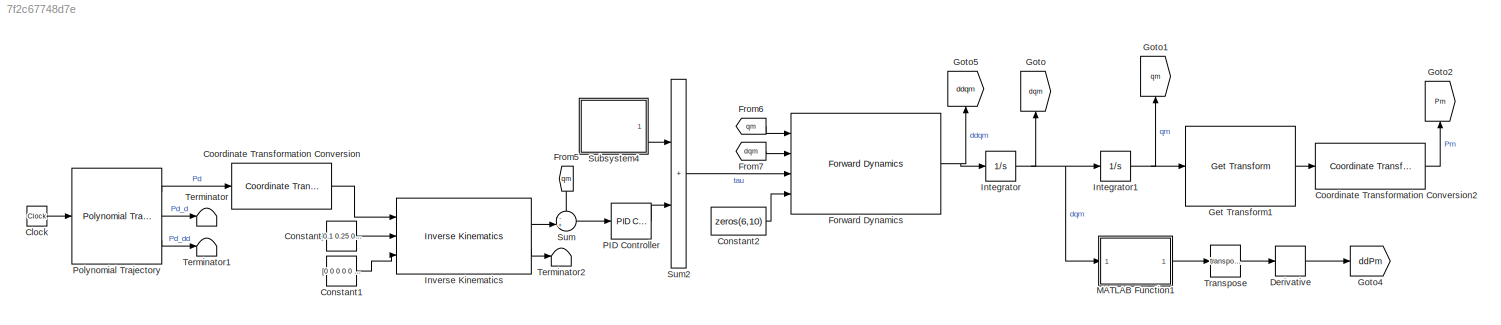
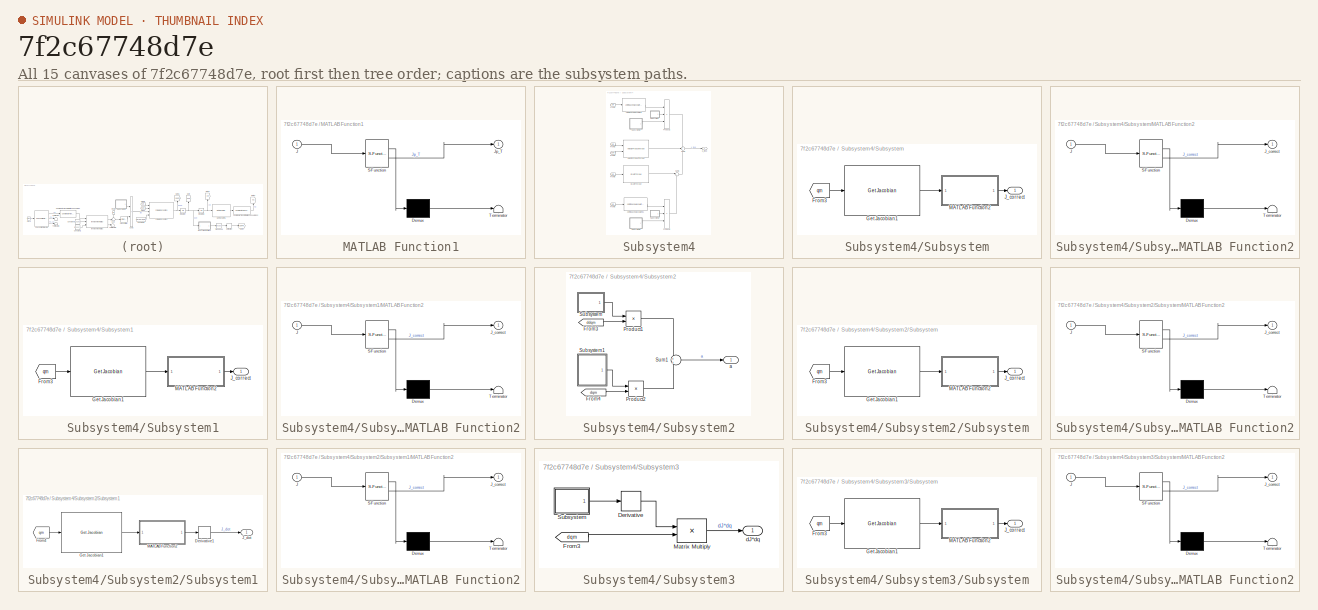
[diagram: thumbnail index - all 15 canvases of the model, root first then tree order]
MODEL slx_7f2c67748d7e
KIND model
CONFIG AbsTol = auto
CONFIG EnableMultiTasking = off
CONFIG FixedStep = auto
CONFIG MaxStep = auto
CONFIG MinStep = auto
CONFIG RelTol = 1e-3
CONFIG SampleTimeConstraint = Unconstrained
CONFIG SolverName = VariableStepAuto
CONFIG StartTime = 0.0
CONFIG StopTime = 10.0
BLOCK [Clock] Clock
BLOCK [Constant] Constant
  Value = [0.1 0.25 0.1 1 1 1]
BLOCK [Constant] Constant1
  Value = [0 0 0 0 0 0 ]
BLOCK [Constant] Constant2
  Value = zeros(6,10)
BLOCK [Reference] Coordinate Transformation Conversion  REF=robotcorelib/Coordinate Transformation Conversion
  Ports = [1, 1]
  SourceBlock = robotcorelib/Coordinate Transformation Conversion
  SourceProductBaseCode = NV,RO,RR,UV
  SourceType = robotics.slcore.internal.block.CoordinateTransformationConversion
BLOCK [Reference] Coordinate Transformation Conversion2  REF=robotcorelib/Coordinate Transformation Conversion
  Ports = [1, 1]
  SourceBlock = robotcorelib/Coordinate Transformation Conversion
  SourceProductBaseCode = NV,RO,RR,UV
  SourceType = robotics.slcore.internal.block.CoordinateTransformationConversion
BLOCK [Derivative] Derivative
BLOCK [Reference] Forward Dynamics  REF=robotmaniplib/Forward Dynamics
  Ports = [4, 1]
  SourceBlock = robotmaniplib/Forward Dynamics
  SourceProductBaseCode = RO
  SourceType = Forward Dynamics
BLOCK [From] From5
  GotoTag = qm
  NameLocation = left
  TagVisibility = global
BLOCK [From] From6
  GotoTag = qm
  TagVisibility = global
BLOCK [From] From7
  GotoTag = dqm
  TagVisibility = global
BLOCK [Reference] Get Transform1  REF=robotmaniplib/Get Transform
  Ports = [1, 1]
  SourceBlock = robotmaniplib/Get Transform
  SourceProductBaseCode = RO
  SourceType = Get Transform
BLOCK [Goto] Goto
  GotoTag = dqm
  NameLocation = right
  TagVisibility = global
BLOCK [Goto] Goto1
  GotoTag = qm
  NameLocation = right
  TagVisibility = global
BLOCK [Goto] Goto2
  GotoTag = Pm
  NameLocation = right
  TagVisibility = global
BLOCK [Goto] Goto4
  GotoTag = ddPm
  TagVisibility = global
BLOCK [Goto] Goto5
  GotoTag = ddqm
  NameLocation = right
  TagVisibility = global
BLOCK [Integrator] Integrator
  InitialCondition = 0.01
  Ports = [1, 1]
BLOCK [Integrator] Integrator1
  InitialCondition = 0.01
  Ports = [1, 1]
BLOCK [Reference] Inverse Kinematics  REF=robotmaniplib/Inverse Kinematics
  Ports = [3, 2]
  SourceBlock = robotmaniplib/Inverse Kinematics
  SourceProductBaseCode = RO
  SourceType = Inverse Kinematics
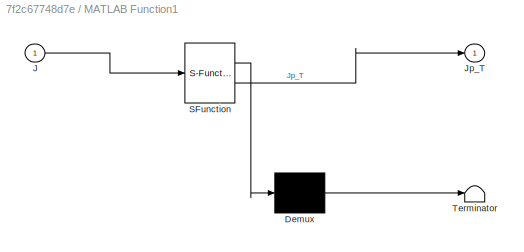
BLOCK [SubSystem] MATLAB Function1
  ErrorFcn = Stateflow.Translate.translate
  PermitHierarchicalResolution = ExplicitOnly
  Ports = [1, 1]
  RequestExecContextInheritance = off
  SFBlockType = MATLAB Function
  TreatAsAtomicUnit = on
BLOCK [Demux] MATLAB Function1/ Demux 
  Outputs = 1
  Ports = [1, 1]
BLOCK [S-Function] MATLAB Function1/ SFunction 
  EnableBusSupport = on
  FunctionName = sf_sfun
  PortCounts = [1 2]
  Ports = [1, 2]
  SFcnIsStateOwnerBlock = off
  SFunctionDeploymentMode = off
  Tag = Stateflow S-Function 1
BLOCK [Terminator] MATLAB Function1/ Terminator 
BLOCK [Inport] MATLAB Function1/J
BLOCK [Outport] MATLAB Function1/Jp_T
BLOCK [Reference] PID Controller  REF=pid_lib/PID Controller
  Ports = [1, 1]
  SourceBlock = pid_lib/PID Controller
  SourceProductBaseCode = SL
  SourceType = PID 1dof
BLOCK [Reference] Polynomial Trajectory  REF=robotcorelib/Polynomial Trajectory
  Ports = [1, 3]
  SourceBlock = robotcorelib/Polynomial Trajectory
  SourceProductBaseCode = NV,RO,RR,UV
  SourceType = robotics.slcore.internal.block.PolyTrajSys
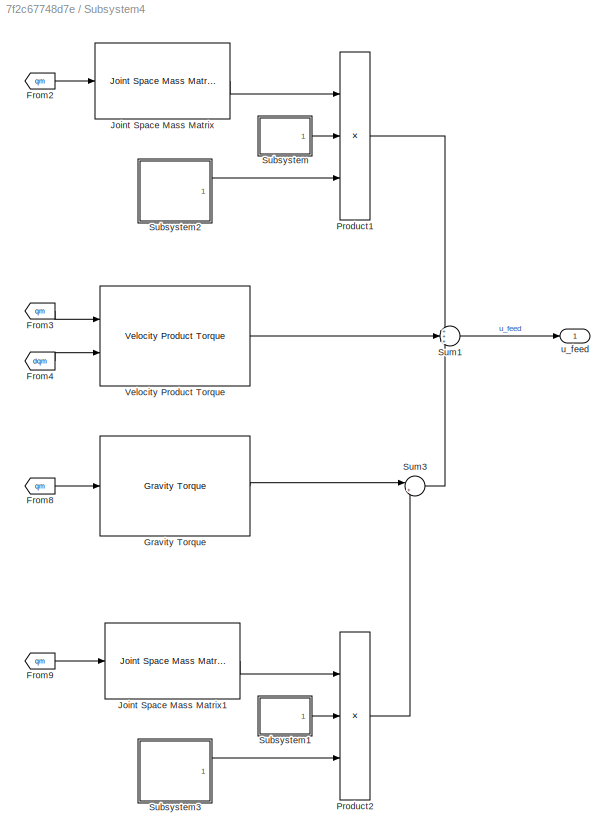
BLOCK [SubSystem] Subsystem4
  Ports = [0, 1]
  RequestExecContextInheritance = off
BLOCK [From] Subsystem4/From2
  GotoTag = qm
  TagVisibility = global
BLOCK [From] Subsystem4/From3
  GotoTag = qm
  TagVisibility = global
BLOCK [From] Subsystem4/From4
  GotoTag = dqm
  TagVisibility = global
BLOCK [From] Subsystem4/From8
  GotoTag = qm
  TagVisibility = global
BLOCK [From] Subsystem4/From9
  GotoTag = qm
  TagVisibility = global
BLOCK [Reference] Subsystem4/Gravity Torque  REF=robotmaniplib/Gravity Torque
  Ports = [1, 1]
  SourceBlock = robotmaniplib/Gravity Torque
  SourceProductBaseCode = RO
  SourceType = Gravity Torque
BLOCK [Reference] Subsystem4/Joint Space Mass Matrix  REF=robotmaniplib/Joint Space Mass Matrix
  Ports = [1, 1]
  SourceBlock = robotmaniplib/Joint Space Mass Matrix
  SourceProductBaseCode = RO
  SourceType = Joint Space Mass Matrix
BLOCK [Reference] Subsystem4/Joint Space Mass Matrix1  REF=robotmaniplib/Joint Space Mass Matrix
  Ports = [1, 1]
  SourceBlock = robotmaniplib/Joint Space Mass Matrix
  SourceProductBaseCode = RO
  SourceType = Joint Space Mass Matrix
BLOCK [Product] Subsystem4/Product1
  Inputs = */*
  Multiplication = Matrix(*)
  Ports = [3, 1]
BLOCK [Product] Subsystem4/Product2
  Inputs = */*
  Multiplication = Matrix(*)
  Ports = [3, 1]
BLOCK [SubSystem] Subsystem4/Subsystem
  Ports = [0, 1]
  RequestExecContextInheritance = off
BLOCK [From] Subsystem4/Subsystem/From3
  GotoTag = qm
  TagVisibility = global
BLOCK [Reference] Subsystem4/Subsystem/Get Jacobian1  REF=robotmaniplib/Get Jacobian
  Ports = [1, 1]
  SourceBlock = robotmaniplib/Get Jacobian
  SourceProductBaseCode = RO
  SourceType = Get Jacobian
BLOCK [Outport] Subsystem4/Subsystem/J_correct
BLOCK [SubSystem] Subsystem4/Subsystem/MATLAB Function2
  ErrorFcn = Stateflow.Translate.translate
  PermitHierarchicalResolution = ExplicitOnly
  Ports = [1, 1]
  RequestExecContextInheritance = off
  SFBlockType = MATLAB Function
  TreatAsAtomicUnit = on
BLOCK [Demux] Subsystem4/Subsystem/MATLAB Function2/ Demux 
  Outputs = 1
  Ports = [1, 1]
BLOCK [S-Function] Subsystem4/Subsystem/MATLAB Function2/ SFunction 
  EnableBusSupport = on
  FunctionName = sf_sfun
  PortCounts = [1 2]
  Ports = [1, 2]
  SFcnIsStateOwnerBlock = off
  SFunctionDeploymentMode = off
  Tag = Stateflow S-Function 5
BLOCK [Terminator] Subsystem4/Subsystem/MATLAB Function2/ Terminator 
BLOCK [Inport] Subsystem4/Subsystem/MATLAB Function2/J
BLOCK [Outport] Subsystem4/Subsystem/MATLAB Function2/J_correct
BLOCK [SubSystem] Subsystem4/Subsystem1
  Ports = [0, 1]
  RequestExecContextInheritance = off
BLOCK [From] Subsystem4/Subsystem1/From3
  GotoTag = qm
  TagVisibility = global
BLOCK [Reference] Subsystem4/Subsystem1/Get Jacobian1  REF=robotmaniplib/Get Jacobian
  Ports = [1, 1]
  SourceBlock = robotmaniplib/Get Jacobian
  SourceProductBaseCode = RO
  SourceType = Get Jacobian
BLOCK [Outport] Subsystem4/Subsystem1/J_correct
BLOCK [SubSystem] Subsystem4/Subsystem1/MATLAB Function2
  ErrorFcn = Stateflow.Translate.translate
  PermitHierarchicalResolution = ExplicitOnly
  Ports = [1, 1]
  RequestExecContextInheritance = off
  SFBlockType = MATLAB Function
  TreatAsAtomicUnit = on
BLOCK [Demux] Subsystem4/Subsystem1/MATLAB Function2/ Demux 
  Outputs = 1
  Ports = [1, 1]
BLOCK [S-Function] Subsystem4/Subsystem1/MATLAB Function2/ SFunction 
  EnableBusSupport = on
  FunctionName = sf_sfun
  PortCounts = [1 2]
  Ports = [1, 2]
  SFcnIsStateOwnerBlock = off
  SFunctionDeploymentMode = off
  Tag = Stateflow S-Function 6
BLOCK [Terminator] Subsystem4/Subsystem1/MATLAB Function2/ Terminator 
BLOCK [Inport] Subsystem4/Subsystem1/MATLAB Function2/J
BLOCK [Outport] Subsystem4/Subsystem1/MATLAB Function2/J_correct
BLOCK [SubSystem] Subsystem4/Subsystem2
  Ports = [0, 1]
  RequestExecContextInheritance = off
BLOCK [From] Subsystem4/Subsystem2/From3
  GotoTag = ddqm
  TagVisibility = global
BLOCK [From] Subsystem4/Subsystem2/From4
  GotoTag = dqm
  TagVisibility = global
BLOCK [Product] Subsystem4/Subsystem2/Product1
  Multiplication = Matrix(*)
  Ports = [2, 1]
BLOCK [Product] Subsystem4/Subsystem2/Product2
  Multiplication = Matrix(*)
  Ports = [2, 1]
BLOCK [SubSystem] Subsystem4/Subsystem2/Subsystem
  Ports = [0, 1]
  RequestExecContextInheritance = off
BLOCK [From] Subsystem4/Subsystem2/Subsystem/From3
  GotoTag = qm
  TagVisibility = global
BLOCK [Reference] Subsystem4/Subsystem2/Subsystem/Get Jacobian1  REF=robotmaniplib/Get Jacobian
  Ports = [1, 1]
  SourceBlock = robotmaniplib/Get Jacobian
  SourceProductBaseCode = RO
  SourceType = Get Jacobian
BLOCK [Outport] Subsystem4/Subsystem2/Subsystem/J_correct
BLOCK [SubSystem] Subsystem4/Subsystem2/Subsystem/MATLAB Function2
  ErrorFcn = Stateflow.Translate.translate
  PermitHierarchicalResolution = ExplicitOnly
  Ports = [1, 1]
  RequestExecContextInheritance = off
  SFBlockType = MATLAB Function
  TreatAsAtomicUnit = on
BLOCK [Demux] Subsystem4/Subsystem2/Subsystem/MATLAB Function2/ Demux 
  Outputs = 1
  Ports = [1, 1]
BLOCK [S-Function] Subsystem4/Subsystem2/Subsystem/MATLAB Function2/ SFunction 
  EnableBusSupport = on
  FunctionName = sf_sfun
  PortCounts = [1 2]
  Ports = [1, 2]
  SFcnIsStateOwnerBlock = off
  SFunctionDeploymentMode = off
  Tag = Stateflow S-Function 3
BLOCK [Terminator] Subsystem4/Subsystem2/Subsystem/MATLAB Function2/ Terminator 
BLOCK [Inport] Subsystem4/Subsystem2/Subsystem/MATLAB Function2/J
BLOCK [Outport] Subsystem4/Subsystem2/Subsystem/MATLAB Function2/J_correct
BLOCK [SubSystem] Subsystem4/Subsystem2/Subsystem1
  Ports = [0, 1]
  RequestExecContextInheritance = off
BLOCK [Derivative] Subsystem4/Subsystem2/Subsystem1/Derivative1
BLOCK [From] Subsystem4/Subsystem2/Subsystem1/From4
  GotoTag = qm
  TagVisibility = global
BLOCK [Reference] Subsystem4/Subsystem2/Subsystem1/Get Jacobian1  REF=robotmaniplib/Get Jacobian
  Ports = [1, 1]
  SourceBlock = robotmaniplib/Get Jacobian
  SourceProductBaseCode = RO
  SourceType = Get Jacobian
BLOCK [Outport] Subsystem4/Subsystem2/Subsystem1/J_dot
BLOCK [SubSystem] Subsystem4/Subsystem2/Subsystem1/MATLAB Function2
  ErrorFcn = Stateflow.Translate.translate
  PermitHierarchicalResolution = ExplicitOnly
  Ports = [1, 1]
  RequestExecContextInheritance = off
  SFBlockType = MATLAB Function
  TreatAsAtomicUnit = on
BLOCK [Demux] Subsystem4/Subsystem2/Subsystem1/MATLAB Function2/ Demux 
  Outputs = 1
  Ports = [1, 1]
BLOCK [S-Function] Subsystem4/Subsystem2/Subsystem1/MATLAB Function2/ SFunction 
  EnableBusSupport = on
  FunctionName = sf_sfun
  PortCounts = [1 2]
  Ports = [1, 2]
  SFcnIsStateOwnerBlock = off
  SFunctionDeploymentMode = off
  Tag = Stateflow S-Function 4
BLOCK [Terminator] Subsystem4/Subsystem2/Subsystem1/MATLAB Function2/ Terminator 
BLOCK [Inport] Subsystem4/Subsystem2/Subsystem1/MATLAB Function2/J
BLOCK [Outport] Subsystem4/Subsystem2/Subsystem1/MATLAB Function2/J_correct
BLOCK [Sum] Subsystem4/Subsystem2/Sum1
  Inputs = +|+
  Ports = [2, 1]
BLOCK [Outport] Subsystem4/Subsystem2/a
BLOCK [SubSystem] Subsystem4/Subsystem3
  Ports = [0, 1]
  RequestExecContextInheritance = off
BLOCK [Derivative] Subsystem4/Subsystem3/Derivative
BLOCK [From] Subsystem4/Subsystem3/From3
  GotoTag = dqm
  TagVisibility = global
BLOCK [Product] Subsystem4/Subsystem3/Matrix Multiply
  Multiplication = Matrix(*)
  Ports = [2, 1]
BLOCK [SubSystem] Subsystem4/Subsystem3/Subsystem
  Ports = [0, 1]
  RequestExecContextInheritance = off
BLOCK [From] Subsystem4/Subsystem3/Subsystem/From3
  GotoTag = qm
  TagVisibility = global
BLOCK [Reference] Subsystem4/Subsystem3/Subsystem/Get Jacobian1  REF=robotmaniplib/Get Jacobian
  Ports = [1, 1]
  SourceBlock = robotmaniplib/Get Jacobian
  SourceProductBaseCode = RO
  SourceType = Get Jacobian
BLOCK [Outport] Subsystem4/Subsystem3/Subsystem/J_correct
BLOCK [SubSystem] Subsystem4/Subsystem3/Subsystem/MATLAB Function2
  ErrorFcn = Stateflow.Translate.translate
  PermitHierarchicalResolution = ExplicitOnly
  Ports = [1, 1]
  RequestExecContextInheritance = off
  SFBlockType = MATLAB Function
  TreatAsAtomicUnit = on
BLOCK [Demux] Subsystem4/Subsystem3/Subsystem/MATLAB Function2/ Demux 
  Outputs = 1
  Ports = [1, 1]
BLOCK [S-Function] Subsystem4/Subsystem3/Subsystem/MATLAB Function2/ SFunction 
  EnableBusSupport = on
  FunctionName = sf_sfun
  PortCounts = [1 2]
  Ports = [1, 2]
  SFcnIsStateOwnerBlock = off
  SFunctionDeploymentMode = off
  Tag = Stateflow S-Function 7
BLOCK [Terminator] Subsystem4/Subsystem3/Subsystem/MATLAB Function2/ Terminator 
BLOCK [Inport] Subsystem4/Subsystem3/Subsystem/MATLAB Function2/J
BLOCK [Outport] Subsystem4/Subsystem3/Subsystem/MATLAB Function2/J_correct
BLOCK [Outport] Subsystem4/Subsystem3/dJ*dq
BLOCK [Sum] Subsystem4/Sum1
  Inputs = +++
  Ports = [3, 1]
BLOCK [Sum] Subsystem4/Sum3
  Inputs = |+-
  Ports = [2, 1]
BLOCK [Reference] Subsystem4/Velocity Product Torque  REF=robotmaniplib/Velocity Product Torque
  Ports = [2, 1]
  SourceBlock = robotmaniplib/Velocity Product Torque
  SourceProductBaseCode = RO
  SourceType = Velocity Product Torque
BLOCK [Outport] Subsystem4/u_feed
BLOCK [Sum] Sum
  Inputs = -+|
  Ports = [2, 1]
BLOCK [Sum] Sum2
  IconShape = rectangular
  Ports = [2, 1]
BLOCK [Terminator] Terminator
BLOCK [Terminator] Terminator1
BLOCK [Terminator] Terminator2
BLOCK [Math] Transpose
  Operator = transpose
  Ports = [1, 1]
LINE Clock:1 -> Polynomial Trajectory:1
LINE Constant1:1 -> Inverse Kinematics:3
LINE Constant2:1 -> Forward Dynamics:4
LINE Constant:1 -> Inverse Kinematics:2
LINE Coordinate Transformation Conversion2:1 -> Goto2:1
LINE Coordinate Transformation Conversion:1 -> Inverse Kinematics:1
LINE Derivative:1 -> Goto4:1
NET Forward Dynamics:1 -> Goto5:1, Integrator:1
LINE From5:1 -> Sum:1
LINE From6:1 -> Forward Dynamics:1
LINE From7:1 -> Forward Dynamics:2
LINE Get Transform1:1 -> Coordinate Transformation Conversion2:1
NET Integrator1:1 -> Get Transform1:1, Goto1:1
NET Integrator:1 -> Goto:1, Integrator1:1, MATLAB Function1:1
LINE Inverse Kinematics:1 -> Sum:2
LINE Inverse Kinematics:2 -> Terminator2:1
LINE MATLAB Function1:1 -> Transpose:1
LINE PID Controller:1 -> Sum2:2
LINE Polynomial Trajectory:1 -> Coordinate Transformation Conversion:1
LINE Polynomial Trajectory:2 -> Terminator:1
LINE Polynomial Trajectory:3 -> Terminator1:1
LINE Subsystem4/From2:1 -> Subsystem4/Joint Space Mass Matrix:1
LINE Subsystem4/From3:1 -> Subsystem4/Velocity Product Torque:1
LINE Subsystem4/From4:1 -> Subsystem4/Velocity Product Torque:2
LINE Subsystem4/From8:1 -> Subsystem4/Gravity Torque:1
LINE Subsystem4/From9:1 -> Subsystem4/Joint Space Mass Matrix1:1
LINE Subsystem4/Gravity Torque:1 -> Subsystem4/Sum3:1
LINE Subsystem4/Joint Space Mass Matrix1:1 -> Subsystem4/Product2:1
LINE Subsystem4/Joint Space Mass Matrix:1 -> Subsystem4/Product1:1
LINE Subsystem4/Product1:1 -> Subsystem4/Sum1:1
LINE Subsystem4/Product2:1 -> Subsystem4/Sum3:2
LINE Subsystem4/Subsystem/From3:1 -> Subsystem4/Subsystem/Get Jacobian1:1
LINE Subsystem4/Subsystem/Get Jacobian1:1 -> Subsystem4/Subsystem/MATLAB Function2:1
LINE Subsystem4/Subsystem/MATLAB Function2:1 -> Subsystem4/Subsystem/J_correct:1
LINE Subsystem4/Subsystem1/From3:1 -> Subsystem4/Subsystem1/Get Jacobian1:1
LINE Subsystem4/Subsystem1/Get Jacobian1:1 -> Subsystem4/Subsystem1/MATLAB Function2:1
LINE Subsystem4/Subsystem1/MATLAB Function2:1 -> Subsystem4/Subsystem1/J_correct:1
LINE Subsystem4/Subsystem1:1 -> Subsystem4/Product2:2
LINE Subsystem4/Subsystem2/From3:1 -> Subsystem4/Subsystem2/Product1:2
LINE Subsystem4/Subsystem2/From4:1 -> Subsystem4/Subsystem2/Product2:2
LINE Subsystem4/Subsystem2/Product1:1 -> Subsystem4/Subsystem2/Sum1:1
LINE Subsystem4/Subsystem2/Product2:1 -> Subsystem4/Subsystem2/Sum1:2
LINE Subsystem4/Subsystem2/Subsystem/From3:1 -> Subsystem4/Subsystem2/Subsystem/Get Jacobian1:1
LINE Subsystem4/Subsystem2/Subsystem/Get Jacobian1:1 -> Subsystem4/Subsystem2/Subsystem/MATLAB Function2:1
LINE Subsystem4/Subsystem2/Subsystem/MATLAB Function2:1 -> Subsystem4/Subsystem2/Subsystem/J_correct:1
LINE Subsystem4/Subsystem2/Subsystem1/Derivative1:1 -> Subsystem4/Subsystem2/Subsystem1/J_dot:1
LINE Subsystem4/Subsystem2/Subsystem1/From4:1 -> Subsystem4/Subsystem2/Subsystem1/Get Jacobian1:1
LINE Subsystem4/Subsystem2/Subsystem1/Get Jacobian1:1 -> Subsystem4/Subsystem2/Subsystem1/MATLAB Function2:1
LINE Subsystem4/Subsystem2/Subsystem1/MATLAB Function2:1 -> Subsystem4/Subsystem2/Subsystem1/Derivative1:1
LINE Subsystem4/Subsystem2/Subsystem1:1 -> Subsystem4/Subsystem2/Product2:1
LINE Subsystem4/Subsystem2/Subsystem:1 -> Subsystem4/Subsystem2/Product1:1
LINE Subsystem4/Subsystem2/Sum1:1 -> Subsystem4/Subsystem2/a:1
LINE Subsystem4/Subsystem2:1 -> Subsystem4/Product1:3
LINE Subsystem4/Subsystem3/Derivative:1 -> Subsystem4/Subsystem3/Matrix Multiply:1
LINE Subsystem4/Subsystem3/From3:1 -> Subsystem4/Subsystem3/Matrix Multiply:2
LINE Subsystem4/Subsystem3/Matrix Multiply:1 -> Subsystem4/Subsystem3/dJ*dq:1
LINE Subsystem4/Subsystem3/Subsystem/From3:1 -> Subsystem4/Subsystem3/Subsystem/Get Jacobian1:1
LINE Subsystem4/Subsystem3/Subsystem/Get Jacobian1:1 -> Subsystem4/Subsystem3/Subsystem/MATLAB Function2:1
LINE Subsystem4/Subsystem3/Subsystem/MATLAB Function2:1 -> Subsystem4/Subsystem3/Subsystem/J_correct:1
LINE Subsystem4/Subsystem3/Subsystem:1 -> Subsystem4/Subsystem3/Derivative:1
LINE Subsystem4/Subsystem3:1 -> Subsystem4/Product2:3
LINE Subsystem4/Subsystem:1 -> Subsystem4/Product1:2
LINE Subsystem4/Sum1:1 -> Subsystem4/u_feed:1
LINE Subsystem4/Sum3:1 -> Subsystem4/Sum1:3
LINE Subsystem4/Velocity Product Torque:1 -> Subsystem4/Sum1:2
LINE Subsystem4:1 -> Sum2:1
LINE Sum2:1 -> Forward Dynamics:3
LINE Sum:1 -> PID Controller:1
LINE Transpose:1 -> Derivative:1
note: NET lines group one-source signal fan-out (src -> all destinations, sorted); 1:1 wires keep LINE
CHART Subsystem4/Subsystem2/Subsystem/MATLAB Function2 states=1 transitions=1
  STATE_LABEL 'eML_blk_kernel()'
  STATE_LABEL 'SCRIPT:\nfunction J_correct = fcn(J)\n\nJ_correct = [J(4:6,:);J(1:3,:)];\n\nend\n'
CHART Subsystem4/Subsystem2/Subsystem1/MATLAB Function2 states=1 transitions=1
  STATE_LABEL 'eML_blk_kernel()'
  STATE_LABEL 'SCRIPT:\nfunction J_correct = fcn(J)\n\nJ_correct = [J(4:6,:);J(1:3,:)];\n\nend\n'
CHART Subsystem4/Subsystem/MATLAB Function2 states=1 transitions=1
  STATE_LABEL 'eML_blk_kernel()'
  STATE_LABEL 'SCRIPT:\nfunction J_correct = fcn(J)\n\nJ_correct = [J(4:6,:);J(1:3,:)];\n\nend\n'
CHART Subsystem4/Subsystem1/MATLAB Function2 states=1 transitions=1
  STATE_LABEL 'eML_blk_kernel()'
  STATE_LABEL 'SCRIPT:\nfunction J_correct = fcn(J)\n\nJ_correct = [J(4:6,:);J(1:3,:)];\n\nend\n'
CHART Subsystem4/Subsystem3/Subsystem/MATLAB Function2 states=1 transitions=1
  STATE_LABEL 'eML_blk_kernel()'
  STATE_LABEL 'SCRIPT:\nfunction J_correct = fcn(J)\n\nJ_correct = [J(4:6,:);J(1:3,:)];\n\nend\n'
CHART MATLAB Function1 states=1 transitions=1
  STATE_LABEL 'eML_blk_kernel()'
  STATE_LABEL "SCRIPT:\nfunction Jp_T = fcn(J)\n\nJp_T = J(4:6,:)';\n\nend\n"
CHART  states=0 transitions=0
CHART  states=0 transitions=0
CHART  states=0 transitions=0
CHART  states=0 transitions=0
CHART  states=0 transitions=0
CHART  states=0 transitions=0
